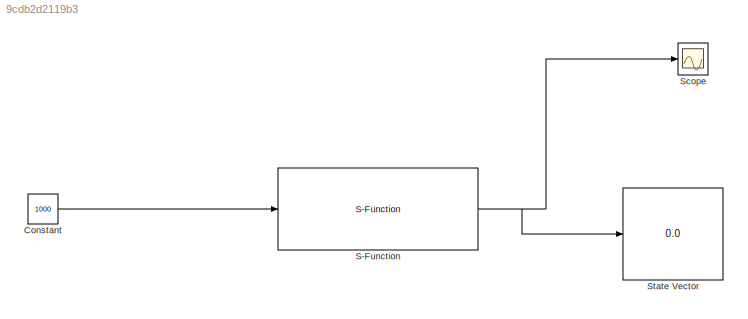
MODEL slx_9cdb2d2119b3
KIND model
CONFIG AbsTol = auto
CONFIG EnableMultiTasking = off
CONFIG FixedStep = auto
CONFIG MaxStep = auto
CONFIG MinStep = auto
CONFIG RelTol = 1e-3
CONFIG SampleTimeConstraint = Unconstrained
CONFIG SolverName = VariableStepAuto
CONFIG StartTime = 0.0
CONFIG StopTime = 150
BLOCK [Constant] Constant
  Value = 1000
BLOCK [S-Function] S-Function
  EnableBusSupport = off
  FunctionName = JSBSim_SFunction
  Parameters = 'ball', 0.0083333, 1, 'scripts/script_ball_chute', 'reset01', 'io/ball_io'
  SFcnIsStateOwnerBlock = off
  SFunctionDeploymentMode = off
BLOCK [Scope] Scope
  Floating = off
  NumInputPorts = 1
  ScopeSpecificationString = Simulink.scopes.TimeScopeBlockCfg('CurrentConfiguration', extmgr.ConfigurationSet(extmgr.Configuration('Core','General UI',true),extmgr.Configuration('Core','Source UI',true),extmgr.Configuration('Sources','WiredSimulink',true),extmgr.Configuration('Visuals','Time Domain',true,'SerializedDisplays',{struct('MinYLimReal','-0.44247','MaxYLimReal','3.98223','YLabelReal','','MinYLimMag','0.00000','MaxY...<+1403ch>
BLOCK [Display] State Vector
  Decimation = 1
LINE Constant:1 -> S-Function:1
NET S-Function:1 -> Scope:1, State Vector:1
note: NET lines group one-source signal fan-out (src -> all destinations, sorted); 1:1 wires keep LINE
